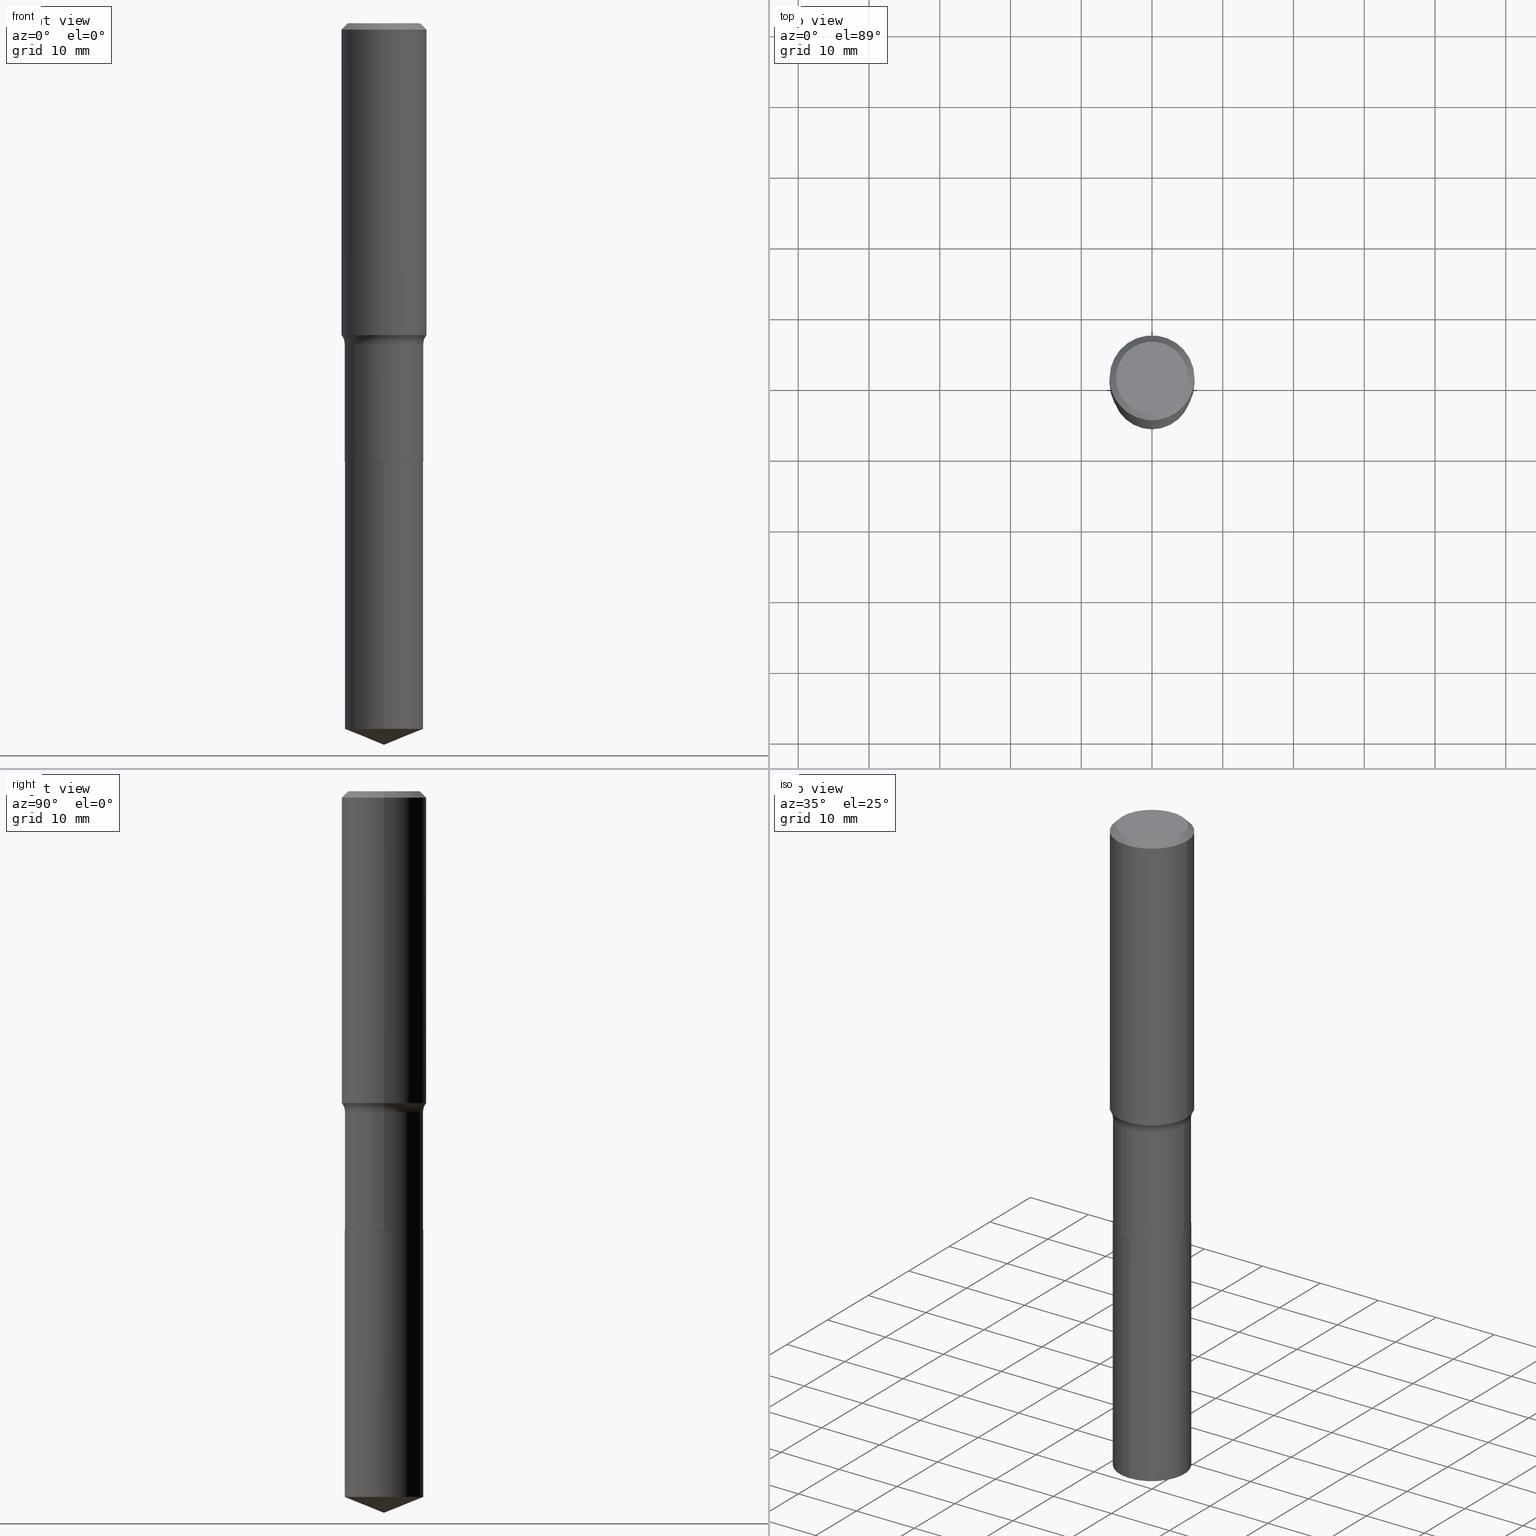
[diagram: canonical four-view strip — front | top / right | iso, engineering-drawing reading convention]
A machine part, canonical four-view strip (front | top / right | iso — engineering-drawing reading convention). The complete STEP part file that produces these views, byte-faithful:
ISO-10303-21;
HEADER;
FILE_DESCRIPTION (( 'STEP AP203' ),
    '1' );
FILE_NAME ('56825.STEP',
    '2024-04-19T14:10:49',
    ( '' ),
    ( '' ),
    'SwSTEP 2.0',
    'SolidWorks 2023',
    '' );
FILE_SCHEMA (( 'CONFIG_CONTROL_DESIGN' ));
ENDSEC;

DATA;
#1 = DIRECTION ( 'NONE',  ( -2.445468806185136597E-29, 3.491481338843145583E-15, 1.000000000000000000 ) ) ;
#2 = MANIFOLD_SOLID_BREP ( 'Body-Move/Copy2[1]', #388 ) ;
#3 = CARTESIAN_POINT ( 'NONE',  ( 5.969144809017299038E-29, -8.522356799982232966E-15, -2.440900000000000070 ) ) ;
#4 = CC_DESIGN_PERSON_AND_ORGANIZATION_ASSIGNMENT ( #466, #165, ( #6 ) ) ;
#5 = VECTOR ( 'NONE', #50, 39.37007874015748143 ) ;
#6 = PRODUCT_DEFINITION_FORMATION_WITH_SPECIFIED_SOURCE ( 'ANY', '', #322, .NOT_KNOWN. ) ;
#7 = LINE ( 'NONE', #163, #383 ) ;
#8 = ORIENTED_EDGE ( 'NONE', *, *, #378, .F. ) ;
#9 = CARTESIAN_POINT ( 'NONE',  ( 5.967922074614207358E-29, -8.520611059312812251E-15, -2.440399999999999903 ) ) ;
#10 = CALENDAR_DATE ( 2024, 19, 4 ) ;
#11 = PLANE ( 'NONE',  #88 ) ;
#12 = AXIS2_PLACEMENT_3D ( 'NONE', #463, #348, #242 ) ;
#13 = APPROVAL_PERSON_ORGANIZATION ( #285, #201, #316 ) ;
#14 = COORDINATED_UNIVERSAL_TIME_OFFSET ( 5, 0, .BEHIND. ) ;
#15 = CALENDAR_DATE ( 2024, 19, 4 ) ;
#16 = CIRCLE ( 'NONE', #12, 0.2187500000000000000 ) ;
#17 = AXIS2_PLACEMENT_3D ( 'NONE', #116, #403, #215 ) ;
#18 = DIRECTION ( 'NONE',  ( -2.445468806185136877E-29, 3.491481338843145188E-15, 1.000000000000000000 ) ) ;
#19 = ORIENTED_EDGE ( 'NONE', *, *, #74, .T. ) ;
#20 = PERSON_AND_ORGANIZATION ( #181, #228 ) ;
#21 = DIRECTION ( 'NONE',  ( -1.000000000000000000, 6.982962677686266711E-15, 0.000000000000000000 ) ) ;
#22 = ADVANCED_FACE ( 'NONE', ( #297 ), #450, .T. ) ;
#23 = VERTEX_POINT ( 'NONE', #420 ) ;
#24 = DIRECTION ( 'NONE',  ( -2.445557876646980384E-29, 3.491353784872209594E-15, 1.000000000000000000 ) ) ;
#25 = ORIENTED_EDGE ( 'NONE', *, *, #298, .F. ) ;
#26 = LINE ( 'NONE', #476, #89 ) ;
#27 = CONICAL_SURFACE ( 'NONE', #205, 97.44436430772864810, 1.186823891356145744 ) ;
#28 = AXIS2_PLACEMENT_3D ( 'NONE', #267, #459, #155 ) ;
#29 = ORIENTED_EDGE ( 'NONE', *, *, #325, .F. ) ;
#30 = DIRECTION ( 'NONE',  ( -2.445468806185136597E-29, 3.491481338843145583E-15, 1.000000000000000000 ) ) ;
#31 = ORIENTED_EDGE ( 'NONE', *, *, #401, .F. ) ;
#32 = EDGE_CURVE ( 'NONE', #289, #214, #226, .T. ) ;
#33 = LINE ( 'NONE', #337, #131 ) ;
#34 = DIRECTION ( 'NONE',  ( -2.445468806185136597E-29, 3.491481338843145583E-15, 1.000000000000000000 ) ) ;
#35 = CARTESIAN_POINT ( 'NONE',  ( 0.2361999999999999933, -1.773078968304709514E-15, -0.03543000000000021826 ) ) ;
#36 = ADVANCED_FACE ( 'NONE', ( #413 ), #243, .T. ) ;
#37 = CIRCLE ( 'NONE', #94, 0.2007700000000000040 ) ;
#38 = FACE_OUTER_BOUND ( 'NONE', #263, .T. ) ;
#39 = DIRECTION ( 'NONE',  ( 1.000000000000000000, -6.982962677686266711E-15, 4.876176775795935232E-29 ) ) ;
#40 = EDGE_LOOP ( 'NONE', ( #406, #361, #19, #347 ) ) ;
#41 = DIRECTION ( 'NONE',  ( -2.445557876646980384E-29, 3.491353784872209594E-15, 1.000000000000000000 ) ) ;
#42 = EDGE_LOOP ( 'NONE', ( #479, #169, #250, #471 ) ) ;
#43 = COORDINATED_UNIVERSAL_TIME_OFFSET ( 5, 0, .BEHIND. ) ;
#44 = ORIENTED_EDGE ( 'NONE', *, *, #354, .F. ) ;
#45 = CIRCLE ( 'NONE', #319, 0.07800000000000002764 ) ;
#46 = VECTOR ( 'NONE', #262, 39.37007874015748143 ) ;
#47 = DIRECTION ( 'NONE',  ( 0.000000000000000000, 0.000000000000000000, 1.000000000000000000 ) ) ;
#48 = DIRECTION ( 'NONE',  ( 1.000000000000000000, -6.982962677686266711E-15, 4.876140833081945105E-29 ) ) ;
#49 = APPROVAL ( #349, 'UNSPECIFIED' ) ;
#50 = DIRECTION ( 'NONE',  ( -2.445468806185136877E-29, 3.491481338843145188E-15, 1.000000000000000000 ) ) ;
#51 = APPROVAL ( #252, 'UNSPECIFIED' ) ;
#52 = DIRECTION ( 'NONE',  ( 1.000000000000000000, -6.982962677686269077E-15, 0.000000000000000000 ) ) ;
#53 = AXIS2_PLACEMENT_3D ( 'NONE', #282, #24, #98 ) ;
#54 = LOCAL_TIME ( 10, 10, 49.00000000000000000, #197 ) ;
#55 = DATE_TIME_ROLE ( 'creation_date' ) ;
#56 = CC_DESIGN_DATE_AND_TIME_ASSIGNMENT ( #435, #203, ( #176 ) ) ;
#57 = EDGE_CURVE ( 'NONE', #59, #23, #352, .T. ) ;
#58 = CARTESIAN_POINT ( 'NONE',  ( -0.2362000000000001043, 1.678301941865357380E-15, -1.161852468318209317E-29 ) ) ;
#59 = VERTEX_POINT ( 'NONE', #342 ) ;
#60 = AXIS2_PLACEMENT_3D ( 'NONE', #261, #158, #82 ) ;
#61 = EDGE_CURVE ( 'NONE', #364, #404, #84, .T. ) ;
#62 = CC_DESIGN_APPROVAL ( #51, ( #176 ) ) ;
#63 = CARTESIAN_POINT ( 'NONE',  ( 0.2362000000000002153, -7.708946087136240734E-15, -1.735529912548379405 ) ) ;
#64 = ORIENTED_EDGE ( 'NONE', *, *, #129, .T. ) ;
#65 = DIRECTION ( 'NONE',  ( -2.445468806185136597E-29, 3.491481338843145583E-15, 1.000000000000000000 ) ) ;
#66 = VERTEX_POINT ( 'NONE', #154 ) ;
#67 = PRODUCT_RELATED_PRODUCT_CATEGORY ( 'detail', '', ( #322 ) ) ;
#68 = DIRECTION ( 'NONE',  ( 1.000000000000000000, -6.982962677686265922E-15, 0.000000000000000000 ) ) ;
#69 = ORIENTED_EDGE ( 'NONE', *, *, #240, .T. ) ;
#70 = CARTESIAN_POINT ( 'NONE',  ( 5.969144809017299038E-29, -8.522356799982232966E-15, -2.440900000000000070 ) ) ;
#71 = ORIENTED_EDGE ( 'NONE', *, *, #318, .T. ) ;
#72 = CARTESIAN_POINT ( 'NONE',  ( 0.000000000000000000, 0.000000000000000000, 0.000000000000000000 ) ) ;
#73 = ORIENTED_EDGE ( 'NONE', *, *, #474, .F. ) ;
#74 = EDGE_CURVE ( 'NONE', #214, #371, #454, .T. ) ;
#75 = PLANE ( 'NONE',  #119 ) ;
#76 = DIRECTION ( 'NONE',  ( 1.000000000000000000, -6.982962677686266711E-15, 0.000000000000000000 ) ) ;
#77 = FACE_OUTER_BOUND ( 'NONE', #105, .T. ) ;
#78 = VECTOR ( 'NONE', #355, 39.37007874015748143 ) ;
#79 = VECTOR ( 'NONE', #448, 39.37007874015748143 ) ;
#80 = EDGE_LOOP ( 'NONE', ( #393, #151, #461, #484 ) ) ;
#81 = DIRECTION ( 'NONE',  ( -2.445468806185136597E-29, 3.491481338843145583E-15, 1.000000000000000000 ) ) ;
#82 = DIRECTION ( 'NONE',  ( -6.982962677686265922E-15, -1.000000000000000000, 3.498761904101819669E-15 ) ) ;
#83 = MECHANICAL_CONTEXT ( 'NONE', #170, 'mechanical' ) ;
#84 = LINE ( 'NONE', #379, #164 ) ;
#85 = CARTESIAN_POINT ( 'NONE',  ( 4.364428178398614221E-29, -6.231246745433362541E-15, -1.784700000000000175 ) ) ;
#86 = ADVANCED_FACE ( 'NONE', ( #269 ), #233, .T. ) ;
#87 = DIRECTION ( 'NONE',  ( -1.000000000000000000, 6.982962677686266711E-15, 0.000000000000000000 ) ) ;
#88 = AXIS2_PLACEMENT_3D ( 'NONE', #384, #426, #473 ) ;
#89 = VECTOR ( 'NONE', #144, 39.37007874015748143 ) ;
#90 = APPROVAL_ROLE ( '' ) ;
#91 = DIRECTION ( 'NONE',  ( -2.445468806185136597E-29, 3.491481338843145583E-15, 1.000000000000000000 ) ) ;
#92 = CC_DESIGN_DATE_AND_TIME_ASSIGNMENT ( #469, #55, ( #134 ) ) ;
#93 = EDGE_CURVE ( 'NONE', #371, #230, #147, .T. ) ;
#94 = AXIS2_PLACEMENT_3D ( 'NONE', #436, #65, #400 ) ;
#95 = VECTOR ( 'NONE', #442, 39.37007874015748854 ) ;
#96 = APPROVAL_ROLE ( '' ) ;
#97 = DATE_AND_TIME ( #430, #456 ) ;
#98 = DIRECTION ( 'NONE',  ( -6.982962677686265133E-15, -1.000000000000000000, 3.746534391310989557E-15 ) ) ;
#99 = ADVANCED_FACE ( 'NONE', ( #38 ), #249, .T. ) ;
#100 = COORDINATED_UNIVERSAL_TIME_OFFSET ( 5, 0, .BEHIND. ) ;
#101 = DIRECTION ( 'NONE',  ( 7.105427357601001859E-15, 1.000000000000000000, -3.491481338843145583E-15 ) ) ;
#102 = VERTEX_POINT ( 'NONE', #310 ) ;
#103 = DATE_AND_TIME ( #472, #389 ) ;
#104 = CARTESIAN_POINT ( 'NONE',  ( -1.001697619218023151E-46, 1.430158722866391908E-32, 4.096137381448114529E-18 ) ) ;
#105 = EDGE_LOOP ( 'NONE', ( #73, #113, #291, #341 ) ) ;
#106 = LINE ( 'NONE', #362, #46 ) ;
#107 = ORIENTED_EDGE ( 'NONE', *, *, #392, .T. ) ;
#108 = LINE ( 'NONE', #179, #149 ) ;
#109 = VERTEX_POINT ( 'NONE', #431 ) ;
#110 = CIRCLE ( 'NONE', #380, 0.2187500000000000000 ) ;
#111 = DIRECTION ( 'NONE',  ( 0.7071067811865453523, -7.319954787623248157E-15, -0.7071067811865496822 ) ) ;
#112 = CIRCLE ( 'NONE', #156, 0.2007700000000000040 ) ;
#113 = ORIENTED_EDGE ( 'NONE', *, *, #139, .T. ) ;
#114 = CARTESIAN_POINT ( 'NONE',  ( 0.2182499999999999996, -1.004638840438726159E-14, -2.440900000000000070 ) ) ;
#115 = CARTESIAN_POINT ( 'NONE',  ( 4.244184263338279886E-29, -6.059570302666743420E-15, -1.735529912548379405 ) ) ;
#116 = CARTESIAN_POINT ( 'NONE',  ( 9.604269145887782522E-29, -1.371197232010835065E-14, -3.927319263098560054 ) ) ;
#117 = ORIENTED_EDGE ( 'NONE', *, *, #209, .F. ) ;
#118 = CARTESIAN_POINT ( 'NONE',  ( -1.527523085743774602E-15, -0.2187500000000136835, -3.927319263098559166 ) ) ;
#119 = AXIS2_PLACEMENT_3D ( 'NONE', #219, #412, #483 ) ;
#120 = CC_DESIGN_APPROVAL ( #49, ( #134 ) ) ;
#121 = CARTESIAN_POINT ( 'NONE',  ( 0.2362000000000001043, -1.649375784469496920E-15, 1.151752954443000508E-29 ) ) ;
#122 = DESIGN_CONTEXT ( 'detailed design', #336, 'design' ) ;
#123 = DIRECTION ( 'NONE',  ( 1.000000000000000000, -6.982962677686266711E-15, 4.876176775795935793E-29 ) ) ;
#124 = EDGE_CURVE ( 'NONE', #102, #178, #37, .T. ) ;
#125 = DIRECTION ( 'NONE',  ( 1.000000000000000000, -6.982962677686262766E-15, 0.000000000000000000 ) ) ;
#126 = PERSON_AND_ORGANIZATION ( #181, #228 ) ;
#127 = DIRECTION ( 'NONE',  ( -2.445468806185136597E-29, 3.491481338843145583E-15, 1.000000000000000000 ) ) ;
#128 = EDGE_CURVE ( 'NONE', #332, #109, #16, .T. ) ;
#129 = EDGE_CURVE ( 'NONE', #482, #332, #327, .T. ) ;
#130 = AXIS2_PLACEMENT_3D ( 'NONE', #187, #239, #21 ) ;
#131 = VECTOR ( 'NONE', #486, 39.37007874015748143 ) ;
#132 = DIRECTION ( 'NONE',  ( -2.445557876646980384E-29, 3.491353784872209594E-15, 1.000000000000000000 ) ) ;
#133 = LINE ( 'NONE', #162, #5 ) ;
#134 = PRODUCT_DEFINITION ( 'UNKNOWN', '', #6, #122 ) ;
#135 = ORIENTED_EDGE ( 'NONE', *, *, #74, .F. ) ;
#136 = CALENDAR_DATE ( 2024, 19, 4 ) ;
#137 = DIRECTION ( 'NONE',  ( 1.000000000000000000, -6.982962677686266711E-15, 4.876176775795935793E-29 ) ) ;
#138 = EDGE_LOOP ( 'NONE', ( #220, #174, #44, #302 ) ) ;
#139 = EDGE_CURVE ( 'NONE', #404, #475, #140, .T. ) ;
#140 = CIRCLE ( 'NONE', #381, 0.2187500000000000000 ) ;
#141 = EDGE_LOOP ( 'NONE', ( #329, #434, #107, #398 ) ) ;
#142 = CARTESIAN_POINT ( 'NONE',  ( 5.969144809017299038E-29, -8.522356799982232966E-15, -2.440900000000000070 ) ) ;
#143 = ORIENTED_EDGE ( 'NONE', *, *, #229, .F. ) ;
#144 = DIRECTION ( 'NONE',  ( 0.7071067811866199593, -2.468850131083015945E-15, 0.7071067811864750752 ) ) ;
#145 = EDGE_CURVE ( 'NONE', #475, #23, #133, .T. ) ;
#146 = ORIENTED_EDGE ( 'NONE', *, *, #93, .F. ) ;
#147 = CIRCLE ( 'NONE', #467, 0.2361999999999999933 ) ;
#148 = DIRECTION ( 'NONE',  ( -2.445468806185136597E-29, 3.491481338843145583E-15, 1.000000000000000000 ) ) ;
#149 = VECTOR ( 'NONE', #111, 39.37007874015748143 ) ;
#150 = ADVANCED_FACE ( 'NONE', ( #196 ), #11, .F. ) ;
#151 = ORIENTED_EDGE ( 'NONE', *, *, #401, .T. ) ;
#152 = DIRECTION ( 'NONE',  ( 1.000000000000000000, -6.982962677686264344E-15, 4.883557194083111780E-29 ) ) ;
#153 = DIRECTION ( 'NONE',  ( -2.445557876646980384E-29, 3.491353784872209594E-15, 1.000000000000000000 ) ) ;
#154 = CARTESIAN_POINT ( 'NONE',  ( 9.820626765251278540E-29, -1.402022939391133127E-14, -4.015699999999999825 ) ) ;
#155 = DIRECTION ( 'NONE',  ( 1.000000000000000000, -6.982962677686266711E-15, 4.876176775795935232E-29 ) ) ;
#156 = AXIS2_PLACEMENT_3D ( 'NONE', #104, #166, #48 ) ;
#157 =( GEOMETRIC_REPRESENTATION_CONTEXT ( 3 ) GLOBAL_UNCERTAINTY_ASSIGNED_CONTEXT ( ( #300 ) ) GLOBAL_UNIT_ASSIGNED_CONTEXT ( ( #416, #275, #387 ) ) REPRESENTATION_CONTEXT ( 'NONE', 'WORKASPACE' ) );
#158 = DIRECTION ( 'NONE',  ( -2.445557876646980384E-29, 3.491353784872209594E-15, 1.000000000000000000 ) ) ;
#159 = FACE_OUTER_BOUND ( 'NONE', #138, .T. ) ;
#160 = ORIENTED_EDGE ( 'NONE', *, *, #390, .T. ) ;
#161 = ADVANCED_FACE ( 'NONE', ( #433 ), #286, .T. ) ;
#162 = CARTESIAN_POINT ( 'NONE',  ( 0.2187499999999999445, -1.527523085743870449E-15, 1.066663669705360604E-29 ) ) ;
#163 = CARTESIAN_POINT ( 'NONE',  ( -0.2187499999999999445, 1.554312234475218762E-15, -1.076017050993260482E-29 ) ) ;
#164 = VECTOR ( 'NONE', #409, 39.37007874015748143 ) ;
#165 = PERSON_AND_ORGANIZATION_ROLE ( 'design_supplier' ) ;
#166 = DIRECTION ( 'NONE',  ( -2.445468806185136597E-29, 3.491481338843145583E-15, 1.000000000000000000 ) ) ;
#167 = AXIS2_PLACEMENT_3D ( 'NONE', #292, #30, #152 ) ;
#168 = DIRECTION ( 'NONE',  ( -2.445468806185136597E-29, 3.491481338843145583E-15, 1.000000000000000000 ) ) ;
#169 = ORIENTED_EDGE ( 'NONE', *, *, #378, .T. ) ;
#170 = APPLICATION_CONTEXT ( 'configuration controlled 3d designs of mechanical parts and assemblies' ) ;
#171 = DIRECTION ( 'NONE',  ( -1.000000000000000000, 7.105427357601001859E-15, 0.000000000000000000 ) ) ;
#172 = ORIENTED_EDGE ( 'NONE', *, *, #202, .T. ) ;
#173 = CARTESIAN_POINT ( 'NONE',  ( 8.664295980313993487E-31, -1.237031838352134079E-16, -0.03543000000000021826 ) ) ;
#174 = ORIENTED_EDGE ( 'NONE', *, *, #474, .T. ) ;
#175 = CIRCLE ( 'NONE', #280, 0.2361999999999999933 ) ;
#176 = SECURITY_CLASSIFICATION ( '', '', #429 ) ;
#177 = CARTESIAN_POINT ( 'NONE',  ( -1.527523085743810890E-15, -0.2187500000000085210, -2.440899999999999181 ) ) ;
#178 = VERTEX_POINT ( 'NONE', #423 ) ;
#179 = CARTESIAN_POINT ( 'NONE',  ( 0.2361999999999999933, -1.744152810908849053E-15, -0.03543000000000021826 ) ) ;
#180 = EDGE_LOOP ( 'NONE', ( #8, #308, #64, #25 ) ) ;
#181 = PERSON ( 'UNSPECIFIED', 'UNSPECIFIED', 'UNSPECIFIED', ('UNSPECIFIED'), ('UNSPECIFIED'), ('UNSPECIFIED') ) ;
#182 = DIRECTION ( 'NONE',  ( 1.000000000000000000, -6.982962677686266711E-15, 0.000000000000000000 ) ) ;
#183 = ORIENTED_EDGE ( 'NONE', *, *, #350, .T. ) ;
#184 = CONICAL_SURFACE ( 'NONE', #464, 0.2361999999999999933, 0.7853981633974452814 ) ;
#185 = FACE_OUTER_BOUND ( 'NONE', #323, .T. ) ;
#186 = CIRCLE ( 'NONE', #397, 0.2362000000000002153 ) ;
#187 = CARTESIAN_POINT ( 'NONE',  ( 8.664295980313993487E-31, -1.237031838352134079E-16, -0.03543000000000021826 ) ) ;
#188 = CARTESIAN_POINT ( 'NONE',  ( 1.554312234475315003E-15, 0.2187499999999862610, -3.927319263098560498 ) ) ;
#189 = DIRECTION ( 'NONE',  ( -2.445468806185136597E-29, 3.491481338843145583E-15, 1.000000000000000000 ) ) ;
#190 = ORIENTED_EDGE ( 'NONE', *, *, #124, .T. ) ;
#191 = CARTESIAN_POINT ( 'NONE',  ( 0.2187500000000000000, -1.004813414505668230E-14, -2.440399999999999903 ) ) ;
#192 = TOROIDAL_SURFACE ( 'NONE', #200, 0.2967499999999999027, 0.07800000000000001377 ) ;
#193 = DIRECTION ( 'NONE',  ( -6.982962677686265133E-15, -1.000000000000000000, 3.746534391310989557E-15 ) ) ;
#194 = ADVANCED_BREP_SHAPE_REPRESENTATION ( '56825', ( #2, #333, #330 ), #157 ) ;
#195 = DIRECTION ( 'NONE',  ( 1.000000000000000000, 0.000000000000000000, 0.000000000000000000 ) ) ;
#196 = FACE_OUTER_BOUND ( 'NONE', #376, .T. ) ;
#197 = COORDINATED_UNIVERSAL_TIME_OFFSET ( 5, 0, .BEHIND. ) ;
#198 = CARTESIAN_POINT ( 'NONE',  ( 5.969144809017299038E-29, -8.522356799982232966E-15, -2.440900000000000070 ) ) ;
#199 = AXIS2_PLACEMENT_3D ( 'NONE', #204, #213, #248 ) ;
#200 = AXIS2_PLACEMENT_3D ( 'NONE', #85, #81, #273 ) ;
#201 = APPROVAL ( #432, 'UNSPECIFIED' ) ;
#202 = EDGE_CURVE ( 'NONE', #289, #59, #45, .T. ) ;
#203 = DATE_TIME_ROLE ( 'classification_date' ) ;
#204 = CARTESIAN_POINT ( 'NONE',  ( 0.2967499999999999027, -8.303440920036761430E-15, -1.784700000000000175 ) ) ;
#205 = AXIS2_PLACEMENT_3D ( 'NONE', #324, #132, #351 ) ;
#206 = EDGE_LOOP ( 'NONE', ( #183, #69, #146, #135 ) ) ;
#207 = LOCAL_TIME ( 10, 10, 49.00000000000000000, #465 ) ;
#208 = CARTESIAN_POINT ( 'NONE',  ( -0.2361999999999999933, -1.413334801385620726E-15, -0.03543000000000021826 ) ) ;
#209 = EDGE_CURVE ( 'NONE', #178, #102, #112, .T. ) ;
#210 = ORIENTED_EDGE ( 'NONE', *, *, #491, .F. ) ;
#211 = PRODUCT_DEFINITION_SHAPE ( 'NONE', 'NONE',  #134 ) ;
#212 = ADVANCED_FACE ( 'NONE', ( #317 ), #218, .T. ) ;
#213 = DIRECTION ( 'NONE',  ( -6.982962677686266711E-15, -1.000000000000000000, 3.491481338843145583E-15 ) ) ;
#214 = VERTEX_POINT ( 'NONE', #63 ) ;
#215 = DIRECTION ( 'NONE',  ( -6.982962677686265133E-15, -1.000000000000000000, 2.497689594207326371E-15 ) ) ;
#216 = ORIENTED_EDGE ( 'NONE', *, *, #209, .T. ) ;
#217 = ADVANCED_FACE ( 'NONE', ( #468 ), #27, .T. ) ;
#218 = CONICAL_SURFACE ( 'NONE', #279, 0.2182499999999999996, 0.7853981633975507526 ) ;
#219 = CARTESIAN_POINT ( 'NONE',  ( 5.969144809017299038E-29, -8.522356799982232966E-15, -2.440900000000000070 ) ) ;
#220 = ORIENTED_EDGE ( 'NONE', *, *, #232, .T. ) ;
#221 = DIRECTION ( 'NONE',  ( -2.445468806185136597E-29, 3.491481338843145583E-15, 1.000000000000000000 ) ) ;
#222 = DIRECTION ( 'NONE',  ( -2.445468806185136877E-29, 3.491481338843145188E-15, 1.000000000000000000 ) ) ;
#223 = CC_DESIGN_PERSON_AND_ORGANIZATION_ASSIGNMENT ( #425, #303, ( #322 ) ) ;
#224 = DIRECTION ( 'NONE',  ( -2.445468806185136597E-29, 3.491481338843145583E-15, 1.000000000000000000 ) ) ;
#225 = DIRECTION ( 'NONE',  ( 1.000000000000000000, -6.982962677686266711E-15, 0.000000000000000000 ) ) ;
#226 = CIRCLE ( 'NONE', #455, 0.2362000000000002153 ) ;
#227 = CARTESIAN_POINT ( 'NONE',  ( 5.969144809017299038E-29, -8.522356799982232966E-15, -2.440900000000000070 ) ) ;
#228 = ORGANIZATION ( 'UNSPECIFIED', 'UNSPECIFIED', '' ) ;
#229 = EDGE_CURVE ( 'NONE', #214, #23, #266, .T. ) ;
#230 = VERTEX_POINT ( 'NONE', #208 ) ;
#231 = CARTESIAN_POINT ( 'NONE',  ( 5.969144809017299038E-29, -8.522356799982232966E-15, -2.440900000000000070 ) ) ;
#232 = EDGE_CURVE ( 'NONE', #475, #404, #110, .T. ) ;
#233 = CYLINDRICAL_SURFACE ( 'NONE', #312, 0.2362000000000001043 ) ;
#234 = CARTESIAN_POINT ( 'NONE',  ( 8.664295980313993487E-31, -1.237031838352134079E-16, -0.03543000000000021826 ) ) ;
#235 = ADVANCED_FACE ( 'NONE', ( #358 ), #360, .T. ) ;
#236 = CARTESIAN_POINT ( 'NONE',  ( 0.000000000000000000, 0.000000000000000000, 0.000000000000000000 ) ) ;
#237 = AXIS2_PLACEMENT_3D ( 'NONE', #272, #1, #411 ) ;
#238 = CC_DESIGN_APPROVAL ( #201, ( #6 ) ) ;
#239 = DIRECTION ( 'NONE',  ( 2.445468806185136597E-29, -3.491481338843145583E-15, -1.000000000000000000 ) ) ;
#240 = EDGE_CURVE ( 'NONE', #289, #230, #391, .T. ) ;
#241 = DIRECTION ( 'NONE',  ( 1.000000000000000000, -6.982962677686269077E-15, 0.000000000000000000 ) ) ;
#242 = DIRECTION ( 'NONE',  ( -6.982962677686265133E-15, -1.000000000000000000, 3.746534391310989557E-15 ) ) ;
#243 = CONICAL_SURFACE ( 'NONE', #60, 97.44436430772864810, 1.186823891356145744 ) ;
#244 = AXIS2_PLACEMENT_3D ( 'NONE', #72, #224, #39 ) ;
#245 = PERSON_AND_ORGANIZATION_ROLE ( 'classification_officer' ) ;
#246 = CARTESIAN_POINT ( 'NONE',  ( -1.527523085743810890E-15, -0.2187500000000085210, -2.440899999999999181 ) ) ;
#247 = SHAPE_DEFINITION_REPRESENTATION ( #211, #194 ) ;
#248 = DIRECTION ( 'NONE',  ( 1.000000000000000000, -6.982962677686255667E-15, 0.000000000000000000 ) ) ;
#249 = CONICAL_SURFACE ( 'NONE', #130, 0.2361999999999999933, 0.7853981633974452814 ) ;
#250 = ORIENTED_EDGE ( 'NONE', *, *, #128, .F. ) ;
#251 = CONICAL_SURFACE ( 'NONE', #259, 0.2182499999999999996, 0.7853981633975507526 ) ;
#252 = APPROVAL_STATUS ( 'not_yet_approved' ) ;
#253 = CARTESIAN_POINT ( 'NONE',  ( 5.967922074614207358E-29, -8.520611059312812251E-15, -2.440399999999999903 ) ) ;
#254 = ORIENTED_EDGE ( 'NONE', *, *, #443, .T. ) ;
#255 = DIRECTION ( 'NONE',  ( 1.000000000000000000, -6.982962677686265922E-15, 4.876176775795935793E-29 ) ) ;
#256 = ORIENTED_EDGE ( 'NONE', *, *, #427, .F. ) ;
#257 = CYLINDRICAL_SURFACE ( 'NONE', #244, 0.2187499999999999445 ) ;
#258 = ORIENTED_EDGE ( 'NONE', *, *, #354, .T. ) ;
#259 = AXIS2_PLACEMENT_3D ( 'NONE', #231, #462, #52 ) ;
#260 = DIRECTION ( 'NONE',  ( -6.982962677686265133E-15, -1.000000000000000000, 3.746534391310989557E-15 ) ) ;
#261 = CARTESIAN_POINT ( 'NONE',  ( -8.646139681404300228E-28, 1.234343326797667560E-13, 35.35437874015748605 ) ) ;
#262 = DIRECTION ( 'NONE',  ( -0.7071067811865453523, 2.468850131082234184E-15, -0.7071067811865496822 ) ) ;
#263 = EDGE_LOOP ( 'NONE', ( #117, #71, #359, #265 ) ) ;
#264 = CARTESIAN_POINT ( 'NONE',  ( 8.664295980313993487E-31, -1.237031838352134079E-16, -0.03543000000000021826 ) ) ;
#265 = ORIENTED_EDGE ( 'NONE', *, *, #392, .F. ) ;
#266 = CIRCLE ( 'NONE', #199, 0.07800000000000002764 ) ;
#267 = CARTESIAN_POINT ( 'NONE',  ( 0.000000000000000000, 0.000000000000000000, 0.000000000000000000 ) ) ;
#268 = AXIS2_PLACEMENT_3D ( 'NONE', #142, #451, #255 ) ;
#269 = FACE_OUTER_BOUND ( 'NONE', #40, .T. ) ;
#270 = DIMENSIONAL_EXPONENTS ( 1.000000000000000000, 0.000000000000000000, 0.000000000000000000, 0.000000000000000000, 0.000000000000000000, 0.000000000000000000, 0.000000000000000000 ) ;
#271 = ADVANCED_FACE ( 'NONE', ( #470 ), #184, .T. ) ;
#272 = CARTESIAN_POINT ( 'NONE',  ( 4.364428178398614221E-29, -6.231246745433362541E-15, -1.784700000000000175 ) ) ;
#273 = DIRECTION ( 'NONE',  ( 1.000000000000000000, -6.982962677686264344E-15, 4.883557194083111780E-29 ) ) ;
#274 = DIRECTION ( 'NONE',  ( 2.445468806185136597E-29, -3.491481338843145583E-15, -1.000000000000000000 ) ) ;
#275 =( NAMED_UNIT ( * ) PLANE_ANGLE_UNIT ( ) SI_UNIT ( $, .RADIAN. ) );
#276 = APPROVAL_PERSON_ORGANIZATION ( #314, #51, #96 ) ;
#277 = DIRECTION ( 'NONE',  ( 1.000000000000000000, -6.982962677686262766E-15, 0.000000000000000000 ) ) ;
#278 = APPROVAL_DATE_TIME ( #377, #49 ) ;
#279 = AXIS2_PLACEMENT_3D ( 'NONE', #198, #168, #386 ) ;
#280 = AXIS2_PLACEMENT_3D ( 'NONE', #264, #148, #408 ) ;
#281 = PERSON_AND_ORGANIZATION_ROLE ( 'creator' ) ;
#282 = CARTESIAN_POINT ( 'NONE',  ( 5.969144809017299038E-29, -8.522356799982232966E-15, -2.440900000000000070 ) ) ;
#283 = CARTESIAN_POINT ( 'NONE',  ( 0.000000000000000000, 0.000000000000000000, 0.000000000000000000 ) ) ;
#284 = EDGE_LOOP ( 'NONE', ( #452, #374 ) ) ;
#285 = PERSON_AND_ORGANIZATION ( #181, #228 ) ;
#286 = CYLINDRICAL_SURFACE ( 'NONE', #414, 0.2362000000000001043 ) ;
#287 = VERTEX_POINT ( 'NONE', #114 ) ;
#288 = LINE ( 'NONE', #440, #79 ) ;
#289 = VERTEX_POINT ( 'NONE', #366 ) ;
#290 = CARTESIAN_POINT ( 'NONE',  ( 9.820191941070650311E-29, -1.402085208688664788E-14, -4.015699999999999825 ) ) ;
#291 = ORIENTED_EDGE ( 'NONE', *, *, #145, .T. ) ;
#292 = CARTESIAN_POINT ( 'NONE',  ( 4.364428178398614221E-29, -6.231246745433362541E-15, -1.784700000000000175 ) ) ;
#293 = VERTEX_POINT ( 'NONE', #188 ) ;
#294 = AXIS2_PLACEMENT_3D ( 'NONE', #489, #221, #68 ) ;
#295 = FACE_OUTER_BOUND ( 'NONE', #402, .T. ) ;
#296 = CC_DESIGN_PERSON_AND_ORGANIZATION_ASSIGNMENT ( #20, #245, ( #176 ) ) ;
#297 = FACE_OUTER_BOUND ( 'NONE', #42, .T. ) ;
#298 = EDGE_CURVE ( 'NONE', #109, #332, #396, .T. ) ;
#299 = CARTESIAN_POINT ( 'NONE',  ( -0.2187500000000000000, -5.821616667897867845E-15, -2.440399999999999903 ) ) ;
#300 = UNCERTAINTY_MEASURE_WITH_UNIT (LENGTH_MEASURE( 1.000000000000000082E-05 ), #416, 'distance_accuracy_value', 'NONE');
#301 = ADVANCED_FACE ( 'NONE', ( #334 ), #75, .F. ) ;
#302 = ORIENTED_EDGE ( 'NONE', *, *, #145, .F. ) ;
#303 = PERSON_AND_ORGANIZATION_ROLE ( 'design_owner' ) ;
#304 = EDGE_LOOP ( 'NONE', ( #254, #343, #356, #29 ) ) ;
#305 = DIRECTION ( 'NONE',  ( -6.982962677686265133E-15, -1.000000000000000000, 2.497689594207326371E-15 ) ) ;
#306 = DIRECTION ( 'NONE',  ( -2.445468806185136597E-29, 3.491481338843145583E-15, 1.000000000000000000 ) ) ;
#307 = CYLINDRICAL_SURFACE ( 'NONE', #28, 0.2187499999999999445 ) ;
#308 = ORIENTED_EDGE ( 'NONE', *, *, #491, .T. ) ;
#309 = EDGE_CURVE ( 'NONE', #230, #371, #175, .T. ) ;
#310 = CARTESIAN_POINT ( 'NONE',  ( -0.2007700000000000040, 1.463821008716677338E-15, 4.096137381438094301E-18 ) ) ;
#311 = DIRECTION ( 'NONE',  ( -2.445468806185136877E-29, 3.491481338843145188E-15, 1.000000000000000000 ) ) ;
#312 = AXIS2_PLACEMENT_3D ( 'NONE', #369, #306, #123 ) ;
#313 = CIRCLE ( 'NONE', #407, 0.2182499999999999996 ) ;
#314 = PERSON_AND_ORGANIZATION ( #181, #228 ) ;
#315 = ADVANCED_FACE ( 'NONE', ( #295 ), #487, .F. ) ;
#316 = APPROVAL_ROLE ( '' ) ;
#317 = FACE_OUTER_BOUND ( 'NONE', #304, .T. ) ;
#318 = EDGE_CURVE ( 'NONE', #178, #371, #108, .T. ) ;
#319 = AXIS2_PLACEMENT_3D ( 'NONE', #395, #101, #171 ) ;
#320 = CIRCLE ( 'NONE', #365, 0.2187500000000000000 ) ;
#321 = DIRECTION ( 'NONE',  ( -2.445468806185136597E-29, 3.491481338843145583E-15, 1.000000000000000000 ) ) ;
#322 = PRODUCT ( '56825', '56825', '', ( #83 ) ) ;
#323 = EDGE_LOOP ( 'NONE', ( #335, #31 ) ) ;
#324 = CARTESIAN_POINT ( 'NONE',  ( -8.646139681404300228E-28, 1.234343326797667560E-13, 35.35437874015748605 ) ) ;
#325 = EDGE_CURVE ( 'NONE', #287, #475, #26, .T. ) ;
#326 = ORIENTED_EDGE ( 'NONE', *, *, #439, .T. ) ;
#327 = LINE ( 'NONE', #246, #78 ) ;
#328 = AXIS2_PLACEMENT_3D ( 'NONE', #227, #373, #260 ) ;
#329 = ORIENTED_EDGE ( 'NONE', *, *, #318, .F. ) ;
#330 = AXIS2_PLACEMENT_3D ( 'NONE', #236, #47, #195 ) ;
#331 = DIRECTION ( 'NONE',  ( 1.000000000000000000, -6.982962677686269077E-15, 0.000000000000000000 ) ) ;
#332 = VERTEX_POINT ( 'NONE', #177 ) ;
#333 = MANIFOLD_SOLID_BREP ( 'Body-Move/Copy2[2]', #344 ) ;
#334 = FACE_OUTER_BOUND ( 'NONE', #284, .T. ) ;
#335 = ORIENTED_EDGE ( 'NONE', *, *, #443, .F. ) ;
#336 = APPLICATION_CONTEXT ( 'configuration controlled 3d designs of mechanical parts and assemblies' ) ;
#337 = CARTESIAN_POINT ( 'NONE',  ( 1.554312234475278518E-15, 0.2187499999999914513, -2.440900000000000514 ) ) ;
#338 = EDGE_LOOP ( 'NONE', ( #367, #438, #417, #258 ) ) ;
#339 = CC_DESIGN_SECURITY_CLASSIFICATION ( #176, ( #6 ) ) ;
#340 = PLANE ( 'NONE',  #268 ) ;
#341 = ORIENTED_EDGE ( 'NONE', *, *, #57, .F. ) ;
#342 = CARTESIAN_POINT ( 'NONE',  ( -0.2187499999999999167, -5.821616667897867845E-15, -1.784700000000000175 ) ) ;
#343 = ORIENTED_EDGE ( 'NONE', *, *, #61, .T. ) ;
#344 = CLOSED_SHELL ( 'NONE', ( #212, #99, #161, #315, #480, #353, #485, #86, #271, #150, #419, #460 ) ) ;
#345 = CARTESIAN_POINT ( 'NONE',  ( 9.604269145887782522E-29, -1.371197232010835065E-14, -3.927319263098560054 ) ) ;
#346 = CIRCLE ( 'NONE', #424, 0.2182499999999999996 ) ;
#347 = ORIENTED_EDGE ( 'NONE', *, *, #309, .F. ) ;
#348 = DIRECTION ( 'NONE',  ( -2.445557876646980384E-29, 3.491353784872209594E-15, 1.000000000000000000 ) ) ;
#349 = APPROVAL_STATUS ( 'not_yet_approved' ) ;
#350 = EDGE_CURVE ( 'NONE', #214, #289, #186, .T. ) ;
#351 = DIRECTION ( 'NONE',  ( -6.982962677686265922E-15, -1.000000000000000000, 3.498761904101819669E-15 ) ) ;
#352 = CIRCLE ( 'NONE', #237, 0.2187499999999999167 ) ;
#353 = ADVANCED_FACE ( 'NONE', ( #77 ), #257, .T. ) ;
#354 = EDGE_CURVE ( 'NONE', #23, #59, #415, .T. ) ;
#355 = DIRECTION ( 'NONE',  ( -2.445557876646980104E-29, 3.491353784872209594E-15, 1.000000000000000000 ) ) ;
#356 = ORIENTED_EDGE ( 'NONE', *, *, #232, .F. ) ;
#357 = APPROVAL_DATE_TIME ( #103, #201 ) ;
#358 = FACE_OUTER_BOUND ( 'NONE', #180, .T. ) ;
#359 = ORIENTED_EDGE ( 'NONE', *, *, #93, .T. ) ;
#360 = CYLINDRICAL_SURFACE ( 'NONE', #53, 0.2187500000000000000 ) ;
#361 = ORIENTED_EDGE ( 'NONE', *, *, #32, .T. ) ;
#362 = CARTESIAN_POINT ( 'NONE',  ( -0.2361999999999999933, 1.525672600634282748E-15, -0.03543000000000021826 ) ) ;
#363 = AXIS2_PLACEMENT_3D ( 'NONE', #3, #153, #193 ) ;
#364 = VERTEX_POINT ( 'NONE', #368 ) ;
#365 = AXIS2_PLACEMENT_3D ( 'NONE', #345, #41, #305 ) ;
#366 = CARTESIAN_POINT ( 'NONE',  ( -0.2362000000000002153, -4.381268360801385448E-15, -1.735529912548379405 ) ) ;
#367 = ORIENTED_EDGE ( 'NONE', *, *, #202, .F. ) ;
#368 = CARTESIAN_POINT ( 'NONE',  ( -0.2182499999999999996, -6.968948052011704295E-15, -2.440900000000000070 ) ) ;
#369 = CARTESIAN_POINT ( 'NONE',  ( 0.000000000000000000, 0.000000000000000000, 0.000000000000000000 ) ) ;
#370 = CARTESIAN_POINT ( 'NONE',  ( 4.244184263338279886E-29, -6.059570302666743420E-15, -1.735529912548379405 ) ) ;
#371 = VERTEX_POINT ( 'NONE', #35 ) ;
#372 = CIRCLE ( 'NONE', #17, 0.2187500000000000000 ) ;
#373 = DIRECTION ( 'NONE',  ( -2.445557876646980384E-29, 3.491353784872209594E-15, 1.000000000000000000 ) ) ;
#374 = ORIENTED_EDGE ( 'NONE', *, *, #298, .T. ) ;
#375 =( LENGTH_UNIT ( ) NAMED_UNIT ( * ) SI_UNIT ( $, .METRE. ) );
#376 = EDGE_LOOP ( 'NONE', ( #190, #216 ) ) ;
#377 = DATE_AND_TIME ( #10, #54 ) ;
#378 = EDGE_CURVE ( 'NONE', #293, #109, #33, .T. ) ;
#379 = CARTESIAN_POINT ( 'NONE',  ( -0.2182499999999999996, -6.971597279185815496E-15, -2.440900000000000070 ) ) ;
#380 = AXIS2_PLACEMENT_3D ( 'NONE', #253, #321, #125 ) ;
#381 = AXIS2_PLACEMENT_3D ( 'NONE', #9, #127, #277 ) ;
#382 = APPLICATION_PROTOCOL_DEFINITION ( 'international standard', 'config_control_design', 1994, #336 ) ;
#383 = VECTOR ( 'NONE', #311, 39.37007874015748143 ) ;
#384 = CARTESIAN_POINT ( 'NONE',  ( -5.008488096090115757E-47, 7.150793614331959538E-33, 2.048068690724057264E-18 ) ) ;
#385 = FACE_OUTER_BOUND ( 'NONE', #80, .T. ) ;
#386 = DIRECTION ( 'NONE',  ( 1.000000000000000000, -6.982962677686269077E-15, 0.000000000000000000 ) ) ;
#387 =( NAMED_UNIT ( * ) SI_UNIT ( $, .STERADIAN. ) SOLID_ANGLE_UNIT ( ) );
#388 = CLOSED_SHELL ( 'NONE', ( #22, #36, #217, #235, #301 ) ) ;
#389 = LOCAL_TIME ( 10, 10, 49.00000000000000000, #14 ) ;
#390 = EDGE_CURVE ( 'NONE', #66, #293, #288, .T. ) ;
#391 = LINE ( 'NONE', #58, #477 ) ;
#392 = EDGE_CURVE ( 'NONE', #102, #230, #106, .T. ) ;
#393 = ORIENTED_EDGE ( 'NONE', *, *, #61, .F. ) ;
#394 = APPROVAL_DATE_TIME ( #97, #51 ) ;
#395 = CARTESIAN_POINT ( 'NONE',  ( -0.2967499999999999027, -4.122711177065266325E-15, -1.784700000000000175 ) ) ;
#396 = CIRCLE ( 'NONE', #328, 0.2187500000000000000 ) ;
#397 = AXIS2_PLACEMENT_3D ( 'NONE', #370, #445, #182 ) ;
#398 = ORIENTED_EDGE ( 'NONE', *, *, #309, .T. ) ;
#399 = PERSON_AND_ORGANIZATION ( #181, #228 ) ;
#400 = DIRECTION ( 'NONE',  ( 1.000000000000000000, -6.982962677686266711E-15, 4.876140833081945105E-29 ) ) ;
#401 = EDGE_CURVE ( 'NONE', #364, #287, #346, .T. ) ;
#402 = EDGE_LOOP ( 'NONE', ( #444, #172, #447, #143 ) ) ;
#403 = DIRECTION ( 'NONE',  ( -2.445557876646980384E-29, 3.491353784872209594E-15, 1.000000000000000000 ) ) ;
#404 = VERTEX_POINT ( 'NONE', #299 ) ;
#405 = DIRECTION ( 'NONE',  ( -2.445468806185136597E-29, 3.491481338843145583E-15, 1.000000000000000000 ) ) ;
#406 = ORIENTED_EDGE ( 'NONE', *, *, #240, .F. ) ;
#407 = AXIS2_PLACEMENT_3D ( 'NONE', #70, #453, #241 ) ;
#408 = DIRECTION ( 'NONE',  ( 1.000000000000000000, -6.982962677686266711E-15, 0.000000000000000000 ) ) ;
#409 = DIRECTION ( 'NONE',  ( -0.7071067811866199593, 7.493145998870616062E-15, 0.7071067811864750752 ) ) ;
#410 = CARTESIAN_POINT ( 'NONE',  ( 5.969144809017299038E-29, -8.522356799982232966E-15, -2.440900000000000070 ) ) ;
#411 = DIRECTION ( 'NONE',  ( 1.000000000000000000, -6.982962677686265922E-15, 0.000000000000000000 ) ) ;
#412 = DIRECTION ( 'NONE',  ( 2.445557876646979824E-29, -3.491353784872209594E-15, -1.000000000000000000 ) ) ;
#413 = FACE_OUTER_BOUND ( 'NONE', #441, .T. ) ;
#414 = AXIS2_PLACEMENT_3D ( 'NONE', #283, #91, #137 ) ;
#415 = CIRCLE ( 'NONE', #294, 0.2187499999999999167 ) ;
#416 =( CONVERSION_BASED_UNIT ( 'INCH', #457 ) LENGTH_UNIT ( ) NAMED_UNIT ( #270 ) );
#417 = ORIENTED_EDGE ( 'NONE', *, *, #229, .T. ) ;
#418 = APPLICATION_PROTOCOL_DEFINITION ( 'international standard', 'config_control_design', 1994, #170 ) ;
#419 = ADVANCED_FACE ( 'NONE', ( #185 ), #340, .F. ) ;
#420 = CARTESIAN_POINT ( 'NONE',  ( 0.2187499999999999167, -7.758769831177233384E-15, -1.784700000000000175 ) ) ;
#421 = FACE_OUTER_BOUND ( 'NONE', #338, .T. ) ;
#422 = CC_DESIGN_PERSON_AND_ORGANIZATION_ASSIGNMENT ( #399, #281, ( #6 ) ) ;
#423 = CARTESIAN_POINT ( 'NONE',  ( 0.2007700000000000040, -1.560767496960719672E-15, 4.096137381458473721E-18 ) ) ;
#424 = AXIS2_PLACEMENT_3D ( 'NONE', #410, #405, #331 ) ;
#425 = PERSON_AND_ORGANIZATION ( #181, #228 ) ;
#426 = DIRECTION ( 'NONE',  ( 2.438088387897960049E-29, -3.491481338843145188E-15, -1.000000000000000000 ) ) ;
#427 = EDGE_CURVE ( 'NONE', #482, #293, #372, .T. ) ;
#428 = PERSON_AND_ORGANIZATION ( #181, #228 ) ;
#429 = SECURITY_CLASSIFICATION_LEVEL ( 'unclassified' ) ;
#430 = CALENDAR_DATE ( 2024, 19, 4 ) ;
#431 = CARTESIAN_POINT ( 'NONE',  ( 1.554312234475315003E-15, 0.2187499999999914235, -2.440900000000000514 ) ) ;
#432 = APPROVAL_STATUS ( 'not_yet_approved' ) ;
#433 = FACE_OUTER_BOUND ( 'NONE', #206, .T. ) ;
#434 = ORIENTED_EDGE ( 'NONE', *, *, #124, .F. ) ;
#435 = DATE_AND_TIME ( #15, #207 ) ;
#436 = CARTESIAN_POINT ( 'NONE',  ( -1.001697619218023151E-46, 1.430158722866391908E-32, 4.096137381448114529E-18 ) ) ;
#437 = VECTOR ( 'NONE', #222, 39.37007874015748143 ) ;
#438 = ORIENTED_EDGE ( 'NONE', *, *, #350, .F. ) ;
#439 = EDGE_CURVE ( 'NONE', #66, #482, #481, .T. ) ;
#440 = CARTESIAN_POINT ( 'NONE',  ( 9.820630578146073895E-29, -1.402022939391133127E-14, -4.015699999999999825 ) ) ;
#441 = EDGE_LOOP ( 'NONE', ( #490, #160, #256 ) ) ;
#442 = DIRECTION ( 'NONE',  ( -6.474490251793180995E-15, -0.9271838545667866471, 0.3746065934159137356 ) ) ;
#443 = EDGE_CURVE ( 'NONE', #287, #364, #313, .T. ) ;
#444 = ORIENTED_EDGE ( 'NONE', *, *, #32, .F. ) ;
#445 = DIRECTION ( 'NONE',  ( -2.445468806185136597E-29, 3.491481338843145583E-15, 1.000000000000000000 ) ) ;
#446 = LOCAL_TIME ( 10, 10, 49.00000000000000000, #43 ) ;
#447 = ORIENTED_EDGE ( 'NONE', *, *, #57, .T. ) ;
#448 = DIRECTION ( 'NONE',  ( 6.588037525764794446E-15, 0.9271838545667893117, 0.3746065934159072963 ) ) ;
#449 = CC_DESIGN_PERSON_AND_ORGANIZATION_ASSIGNMENT ( #428, #492, ( #134 ) ) ;
#450 = CYLINDRICAL_SURFACE ( 'NONE', #363, 0.2187500000000000000 ) ;
#451 = DIRECTION ( 'NONE',  ( -2.438088387897960049E-29, 3.491481338843145188E-15, 1.000000000000000000 ) ) ;
#452 = ORIENTED_EDGE ( 'NONE', *, *, #128, .T. ) ;
#453 = DIRECTION ( 'NONE',  ( -2.445468806185136597E-29, 3.491481338843145583E-15, 1.000000000000000000 ) ) ;
#454 = LINE ( 'NONE', #121, #437 ) ;
#455 = AXIS2_PLACEMENT_3D ( 'NONE', #115, #189, #76 ) ;
#456 = LOCAL_TIME ( 10, 10, 49.00000000000000000, #100 ) ;
#457 = LENGTH_MEASURE_WITH_UNIT ( LENGTH_MEASURE( 0.02539999999999999897 ), #375 );
#458 = EDGE_LOOP ( 'NONE', ( #488, #326, #210 ) ) ;
#459 = DIRECTION ( 'NONE',  ( -2.445468806185136597E-29, 3.491481338843145583E-15, 1.000000000000000000 ) ) ;
#460 = ADVANCED_FACE ( 'NONE', ( #385 ), #251, .T. ) ;
#461 = ORIENTED_EDGE ( 'NONE', *, *, #325, .T. ) ;
#462 = DIRECTION ( 'NONE',  ( -2.445468806185136597E-29, 3.491481338843145583E-15, 1.000000000000000000 ) ) ;
#463 = CARTESIAN_POINT ( 'NONE',  ( 5.969144809017299038E-29, -8.522356799982232966E-15, -2.440900000000000070 ) ) ;
#464 = AXIS2_PLACEMENT_3D ( 'NONE', #173, #274, #87 ) ;
#465 = COORDINATED_UNIVERSAL_TIME_OFFSET ( 5, 0, .BEHIND. ) ;
#466 = PERSON_AND_ORGANIZATION ( #181, #228 ) ;
#467 = AXIS2_PLACEMENT_3D ( 'NONE', #234, #34, #225 ) ;
#468 = FACE_OUTER_BOUND ( 'NONE', #458, .T. ) ;
#469 = DATE_AND_TIME ( #136, #446 ) ;
#470 = FACE_OUTER_BOUND ( 'NONE', #141, .T. ) ;
#471 = ORIENTED_EDGE ( 'NONE', *, *, #129, .F. ) ;
#472 = CALENDAR_DATE ( 2024, 19, 4 ) ;
#473 = DIRECTION ( 'NONE',  ( -1.000000000000000000, 6.982962677686265922E-15, -4.876176775795935793E-29 ) ) ;
#474 = EDGE_CURVE ( 'NONE', #404, #59, #7, .T. ) ;
#475 = VERTEX_POINT ( 'NONE', #191 ) ;
#476 = CARTESIAN_POINT ( 'NONE',  ( 0.2182499999999999996, -1.004638840438726159E-14, -2.440900000000000070 ) ) ;
#477 = VECTOR ( 'NONE', #18, 39.37007874015748143 ) ;
#478 = APPROVAL_PERSON_ORGANIZATION ( #126, #49, #90 ) ;
#479 = ORIENTED_EDGE ( 'NONE', *, *, #427, .T. ) ;
#480 = ADVANCED_FACE ( 'NONE', ( #159 ), #307, .T. ) ;
#481 = LINE ( 'NONE', #290, #95 ) ;
#482 = VERTEX_POINT ( 'NONE', #118 ) ;
#483 = DIRECTION ( 'NONE',  ( 6.982962677686265922E-15, 1.000000000000000000, -3.491353784872209594E-15 ) ) ;
#484 = ORIENTED_EDGE ( 'NONE', *, *, #139, .F. ) ;
#485 = ADVANCED_FACE ( 'NONE', ( #421 ), #192, .F. ) ;
#486 = DIRECTION ( 'NONE',  ( -2.445557876646980104E-29, 3.491353784872209594E-15, 1.000000000000000000 ) ) ;
#487 = TOROIDAL_SURFACE ( 'NONE', #167, 0.2967499999999999027, 0.07800000000000001377 ) ;
#488 = ORIENTED_EDGE ( 'NONE', *, *, #390, .F. ) ;
#489 = CARTESIAN_POINT ( 'NONE',  ( 4.364428178398614221E-29, -6.231246745433362541E-15, -1.784700000000000175 ) ) ;
#490 = ORIENTED_EDGE ( 'NONE', *, *, #439, .F. ) ;
#491 = EDGE_CURVE ( 'NONE', #293, #482, #320, .T. ) ;
#492 = PERSON_AND_ORGANIZATION_ROLE ( 'creator' ) ;
ENDSEC;
END-ISO-10303-21;
